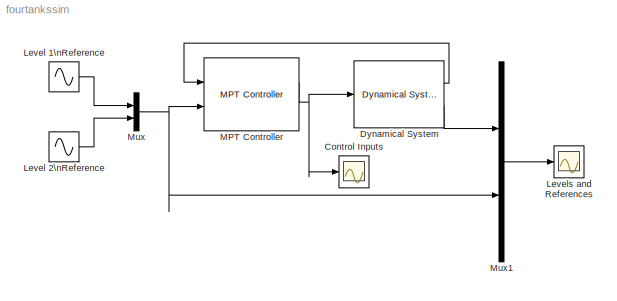
MODEL fourtankssim
KIND model
CONFIG AbsTol = auto
CONFIG FixedStep = auto
CONFIG MaxStep = auto
CONFIG MinStep = auto
CONFIG RelTol = 1e-3
CONFIG Solver = ode45
CONFIG SolverMode = Auto
CONFIG StartTime = 0.0
CONFIG StopTime = 1000
BLOCK [Scope] Control Inputs
  DataFormat = StructureWithTime
  Decimation = 1
  Floating = off
  Grid = on
  LimitDataPoints = on
  MaxDataPoints = 5000
  NumInputPorts = 1
  Ports = [1]
  SampleInput = off
  SampleTime = 0
  SaveName = ScopeData1
  SaveToWorkspace = off
  TickLabels = OneTimeTick
  TimeRange = 1000
  YMax = 1
  YMin = -1
  ZoomMode = on
BLOCK [Reference] Dynamical System  REF=mpt_sim/Dynamical System  (lib defined in mdl_5038361577fd, mdl_5af201d48cda)
  Ports = [1, 2]
  SourceBlock = mpt_sim/Dynamical System
  SourceType = Dynamical System with Constraints
  Ts = []
  constr = on
  sysStruct = sysStruct
  x0 = [0;0;0;0]
BLOCK [Sin] Level 1\nReference
  Amplitude = 2
  Frequency = 0.01
  Phase = 0
  SampleTime = 0
  VectorParams1D = on
BLOCK [Sin] Level 2\nReference
  Amplitude = 1
  Frequency = 0.01
  Phase = 1
  SampleTime = 0
  VectorParams1D = on
BLOCK [Scope] Levels and References
  DataFormat = StructureWithTime
  Decimation = 1
  Floating = off
  Grid = on
  LimitDataPoints = on
  MaxDataPoints = 5000
  NumInputPorts = 1
  Ports = [1]
  SampleInput = off
  SampleTime = 0
  SaveName = ScopeData
  SaveToWorkspace = off
  TickLabels = OneTimeTick
  TimeRange = 1000
  YMax = 3
  YMin = -3
  ZoomMode = on
BLOCK [Reference] MPT Controller  REF=mpt_sim/MPT Controller  (lib defined in mdl_5038361577fd, mdl_5af201d48cda)
  Ports = [2, 2]
  SourceBlock = mpt_sim/MPT Controller
  SourceType = MPT Controller
  Ts = []
  ctrl = onlinec
  infbreak = on
BLOCK [Mux] Mux
  DisplayOption = bar
  Inputs = 2
  Ports = [2, 1]
BLOCK [Mux] Mux1
  DisplayOption = bar
  Inputs = 2
  Ports = [2, 1]
LINE Dynamical System:1 -> MPT Controller:1
LINE Dynamical System:2 -> Mux1:1
LINE Level 1\nReference:1 -> Mux:1
LINE Level 2\nReference:1 -> Mux:2
NET MPT Controller:1 -> Control Inputs:1, Dynamical System:1
LINE Mux1:1 -> Levels and References:1
NET Mux:1 -> MPT Controller:2, Mux1:2
note: NET lines group one-source signal fan-out (src -> all destinations, sorted); 1:1 wires keep LINE
